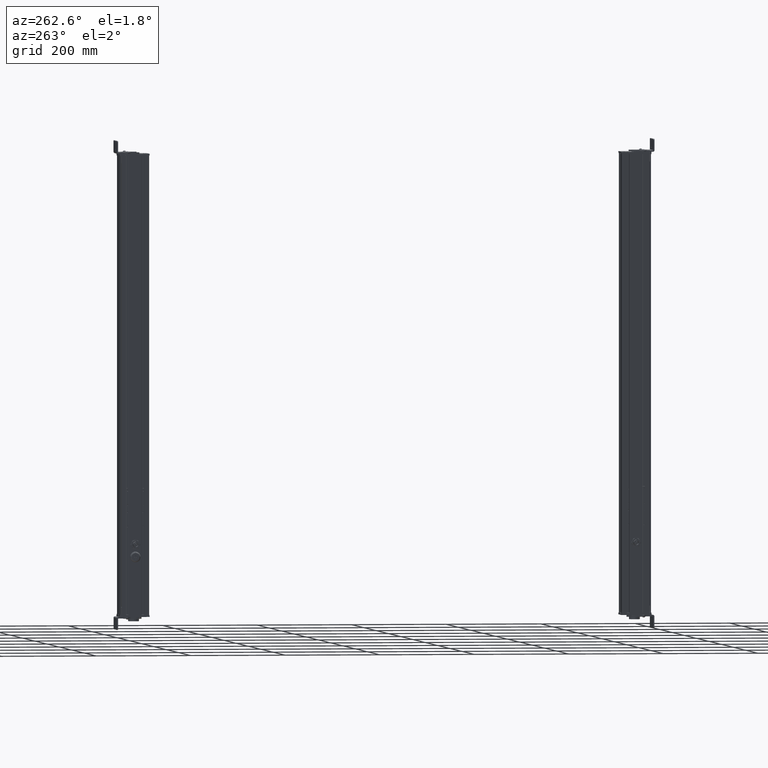
[diagram: clean part render]
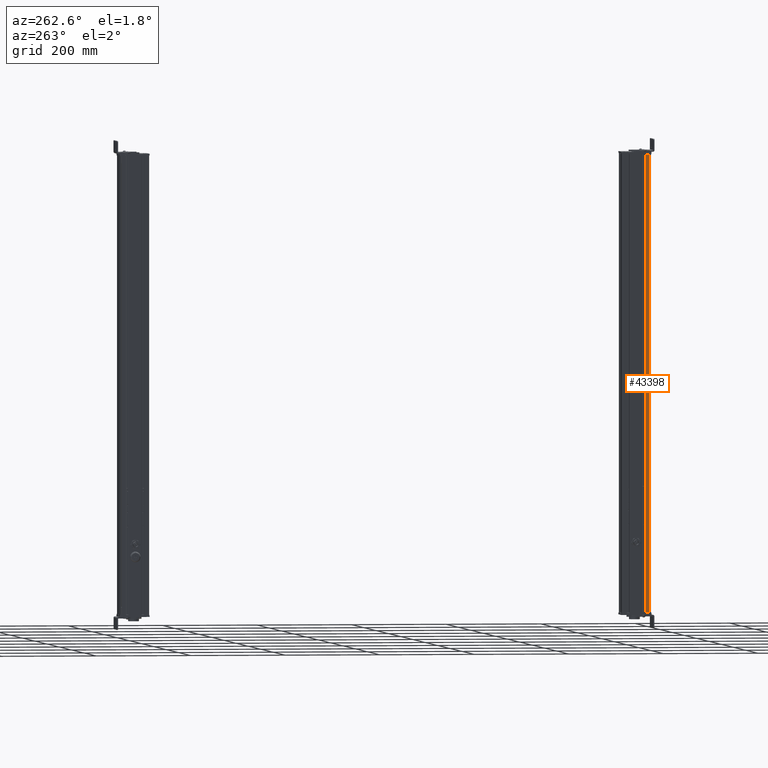
[diagram: same view with one face highlighted and labeled with its STEP entity id]
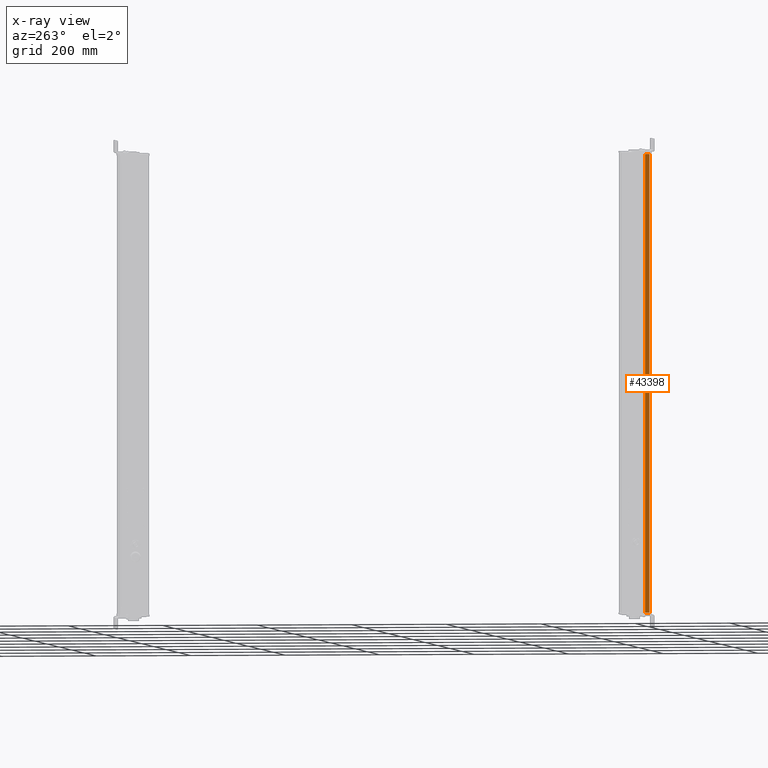
[diagram: x-ray of the same camera — body ghosted, the highlighted face saturated]
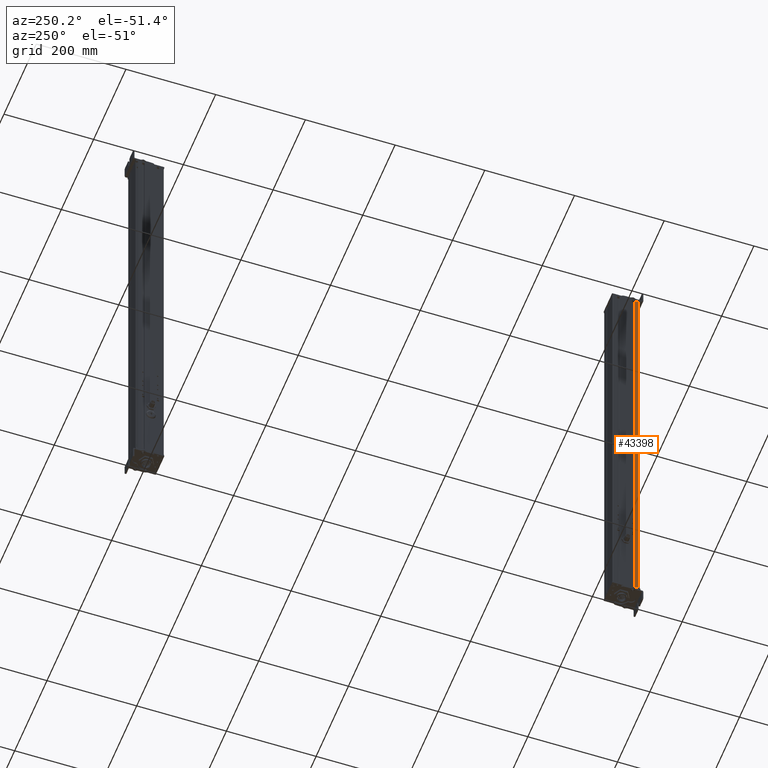
[diagram: same view with one face highlighted and labeled with its STEP entity id]
A machine part, auxiliary view. The second image highlights one B-rep face of the part: STEP entity #43398.
The next image is the same camera in x-ray: the body ghosted, the highlighted face saturated — about 0% of this face is hidden behind the body in this view.
A second angle (auxiliary view) of the same face is appended — the face is thin or edge-on in the first view.
In plain terms, the highlighted planar face has unit normal (-1, 0, 0).
Its self-contained STEP definition (entity closure, byte-faithful):
#41910=CARTESIAN_POINT('Axis2P3D Location',(613.195548937,133.067790275,0.)) ;
#43351=CARTESIAN_POINT('Vertex',(613.195548938,133.067790275,0.)) ;
#43354=CARTESIAN_POINT('Line Origine',(613.195548938,133.067790275,481.)) ;
#43358=CARTESIAN_POINT('Vertex',(613.195548938,133.067790275,962.)) ;
#43373=CARTESIAN_POINT('Line Origine',(613.195548937,128.589896023,0.)) ;
#43377=CARTESIAN_POINT('Vertex',(613.195548937,124.112001771,0.)) ;
#43380=CARTESIAN_POINT('Line Origine',(613.195548937,124.112001771,481.)) ;
#43384=CARTESIAN_POINT('Vertex',(613.195548937,124.112001771,962.)) ;
#43387=CARTESIAN_POINT('Line Origine',(613.195548937,128.589896023,962.)) ;
#41911=DIRECTION('Axis2P3D Direction',(-1.,0.,0.)) ;
#41912=DIRECTION('Axis2P3D XDirection',(0.,-1.,0.)) ;
#43355=DIRECTION('Vector Direction',(0.,0.,1.)) ;
#43374=DIRECTION('Vector Direction',(0.,-1.,0.)) ;
#43381=DIRECTION('Vector Direction',(0.,0.,1.)) ;
#43388=DIRECTION('Vector Direction',(0.,-1.,0.)) ;
#41913=AXIS2_PLACEMENT_3D('Plane Axis2P3D',#41910,#41911,#41912) ;
#43393=ORIENTED_EDGE('',*,*,#43360,.F.) ;
#43394=ORIENTED_EDGE('',*,*,#43379,.T.) ;
#43395=ORIENTED_EDGE('',*,*,#43386,.T.) ;
#43396=ORIENTED_EDGE('',*,*,#43391,.F.) ;
#43356=VECTOR('Line Direction',#43355,1.) ;
#43375=VECTOR('Line Direction',#43374,1.) ;
#43382=VECTOR('Line Direction',#43381,1.) ;
#43389=VECTOR('Line Direction',#43388,1.) ;
#43398=ADVANCED_FACE('Body.2',(#43397),#41914,.T.) ;
#43360=EDGE_CURVE('',#43352,#43359,#43357,.T.) ;
#43379=EDGE_CURVE('',#43352,#43378,#43376,.T.) ;
#43386=EDGE_CURVE('',#43378,#43385,#43383,.T.) ;
#43391=EDGE_CURVE('',#43359,#43385,#43390,.T.) ;
#43392=EDGE_LOOP('',(#43393,#43394,#43395,#43396)) ;
#43397=FACE_OUTER_BOUND('',#43392,.T.) ;
#43357=LINE('Line',#43354,#43356) ;
#43376=LINE('Line',#43373,#43375) ;
#43383=LINE('Line',#43380,#43382) ;
#43390=LINE('Line',#43387,#43389) ;
#41914=PLANE('Plane',#41913) ;
#43352=VERTEX_POINT('',#43351) ;
#43359=VERTEX_POINT('',#43358) ;
#43378=VERTEX_POINT('',#43377) ;
#43385=VERTEX_POINT('',#43384) ;